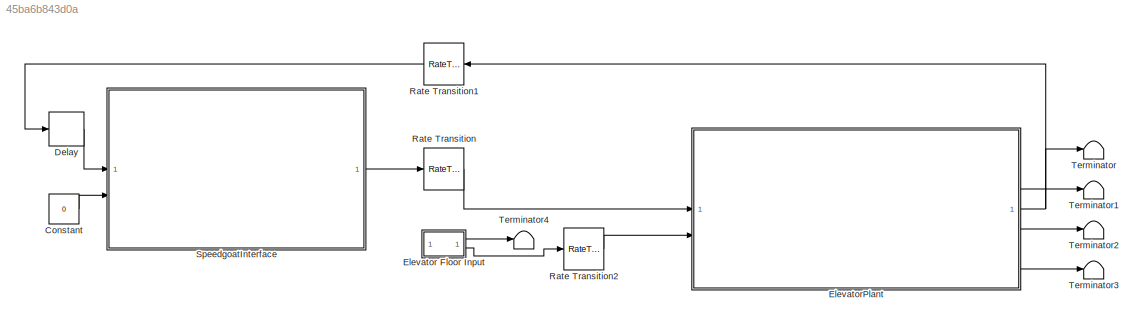
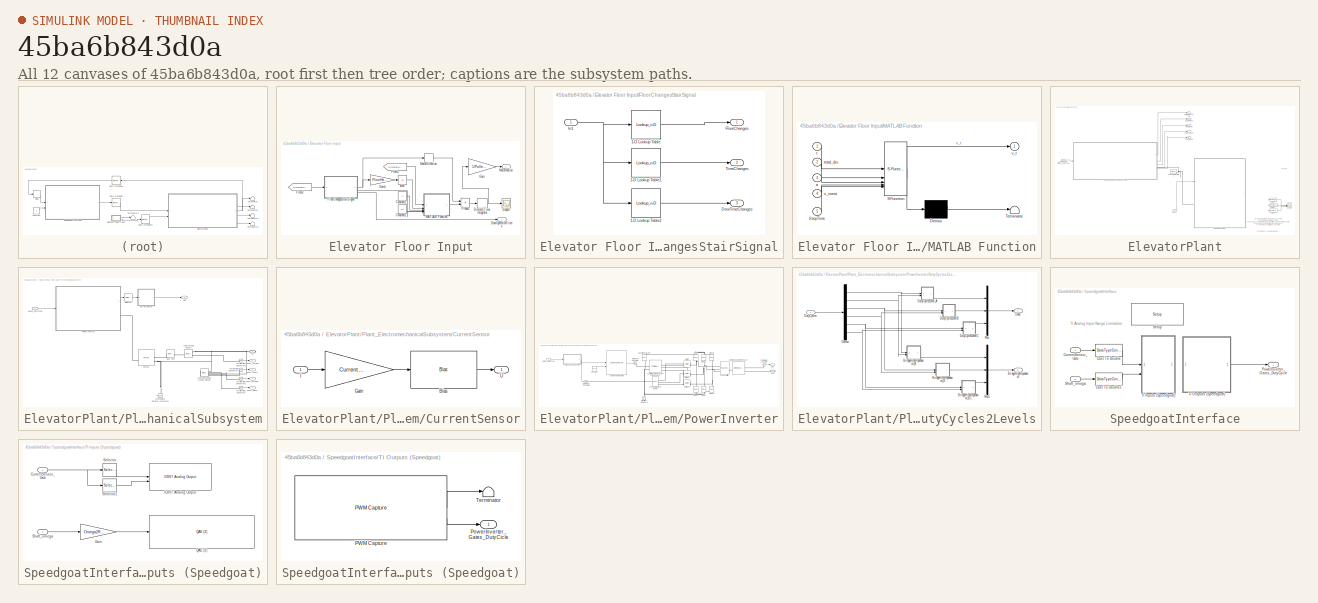
[diagram: thumbnail index - all 12 canvases of the model, root first then tree order]
MODEL slx_45ba6b843d0a
KIND model
CONFIG AbsTol = auto
CONFIG EnableMultiTasking = off
CONFIG FixedStep = auto
CONFIG MaxStep = auto
CONFIG MinStep = auto
CONFIG RelTol = 1e-3
CONFIG SampleTimeConstraint = Unconstrained
CONFIG SolverName = FixedStepAuto
CONFIG StartTime = 0.0
CONFIG StopTime = Inf
BLOCK [Constant] Constant
  SampleTime = -1
  Value = 0
BLOCK [Delay] Delay
  DelayLength = 1
  InputPortMap = u0
BLOCK [SubSystem] Elevator Floor Input
  ShowPortLabels = none
BLOCK [Abs] Elevator Floor Input/Abs
  SaturateOnIntegerOverflow = off
BLOCK [Constant] Elevator Floor Input/Constant1
  SampleTime = -1
BLOCK [Constant] Elevator Floor Input/Constant2
  SampleTime = -1
  Value = 1.5
BLOCK [DiscreteIntegrator] Elevator Floor Input/Discrete-Time Integrator
  ICPrevOutput = DiscIntNeverNeededParam
  ICPrevScaledInput = DiscIntNeverNeededParam
  InitialConditionSetting = Auto
  SampleTime = -1
BLOCK [Outport] Elevator Floor Input/DoorOperationTimes
  Port = 2
  VectorParamsAs1DForOutWhenUnconnected = off
BLOCK [SubSystem] Elevator Floor Input/FloorChangesStairSignal
BLOCK [Lookup_n-D] Elevator Floor Input/FloorChangesStairSignal/1-D Lookup Table
  BreakpointsForDimension1 = FloorTimeStairOut
  BreakpointsForDimension1FirstPoint = 2
  ExtrapMethod = Clip
  InputPortMap = u0
  InternalRulePriority = Speed
  NumberOfTableDimensions = 1
  RndMeth = Nearest
  Table = FloorStairOut
  UseLastTableValue = on
BLOCK [Lookup_n-D] Elevator Floor Input/FloorChangesStairSignal/1-D Lookup Table1
  BreakpointsForDimension1 = StairOutTime2
  BreakpointsForDimension1FirstPoint = 2
  ExtrapMethod = Clip
  InputPortMap = u0
  InternalRulePriority = Speed
  NumberOfTableDimensions = 1
  RndMeth = Nearest
  Table = StairOutTime1
  UseLastTableValue = on
BLOCK [Lookup_n-D] Elevator Floor Input/FloorChangesStairSignal/1-D Lookup Table2
  BreakpointsForDimension1 = DoorStairOutTime2
  BreakpointsForDimension1FirstPoint = 2
  ExtrapMethod = Clip
  InputPortMap = u0
  InternalRulePriority = Speed
  NumberOfTableDimensions = 1
  RndMeth = Nearest
  Table = DoorStairOutTime1
  UseLastTableValue = on
BLOCK [Outport] Elevator Floor Input/FloorChangesStairSignal/DoorTimeChanges
  Port = 3
  VectorParamsAs1DForOutWhenUnconnected = off
BLOCK [Outport] Elevator Floor Input/FloorChangesStairSignal/FloorChanges
  VectorParamsAs1DForOutWhenUnconnected = off
BLOCK [Inport] Elevator Floor Input/FloorChangesStairSignal/In1
BLOCK [Outport] Elevator Floor Input/FloorChangesStairSignal/TimeChanges
  Port = 2
  VectorParamsAs1DForOutWhenUnconnected = off
BLOCK [From] Elevator Floor Input/From1
  GotoTag = SimulationTime
BLOCK [From] Elevator Floor Input/From2
  GotoTag = SimulationTime
BLOCK [Gain] Elevator Floor Input/Gain
  Gain = 1/Pulley.radius
BLOCK [Gain] Elevator Floor Input/Gain1
  Gain = FloorHeight
BLOCK [SubSystem] Elevator Floor Input/MATLAB Function
  ErrorFcn = Stateflow.Translate.translate
  PermitHierarchicalResolution = ExplicitOnly
  SFBlockType = MATLAB Function
  TreatAsAtomicUnit = on
BLOCK [Demux] Elevator Floor Input/MATLAB Function/ Demux 
  Outputs = 1
BLOCK [S-Function] Elevator Floor Input/MATLAB Function/ SFunction 
  EnableBusSupport = on
  FunctionName = sf_sfun
  PortCounts = [5 2]
  SFcnIsStateOwnerBlock = off
  SFunctionDeploymentMode = off
  Tag = Stateflow S-Function 2
BLOCK [Terminator] Elevator Floor Input/MATLAB Function/ Terminator 
BLOCK [Inport] Elevator Floor Input/MATLAB Function/StepTime
  Port = 5
BLOCK [Inport] Elevator Floor Input/MATLAB Function/a
  Port = 3
BLOCK [Inport] Elevator Floor Input/MATLAB Function/t
BLOCK [Inport] Elevator Floor Input/MATLAB Function/total_dis
  Port = 2
BLOCK [Inport] Elevator Floor Input/MATLAB Function/v_const
  Port = 4
BLOCK [Outport] Elevator Floor Input/MATLAB Function/v_t
  VectorParamsAs1DForOutWhenUnconnected = off
BLOCK [Signum] Elevator Floor Input/MotorDirection
BLOCK [Outport] Elevator Floor Input/MotorMotion
  VectorParamsAs1DForOutWhenUnconnected = off
BLOCK [Product] Elevator Floor Input/Product
BLOCK [Scope] Elevator Floor Input/Scope1
  Floating = off
  NumInputPorts = 1
  ScopeSpecificationString = Simulink.scopes.TimeScopeBlockCfg('CurrentConfiguration', extmgr.ConfigurationSet(extmgr.Configuration('Core','General UI',true),extmgr.Configuration('Core','Source UI',true),extmgr.Configuration('Sources','WiredSimulink',true,'DataLoggingVariableName','ScopeData5'),extmgr.Configuration('Visuals','Time Domain',true,'SerializedDisplays',{struct('MinYLimReal','-1.8','MaxYLimReal','16.19996','YLabelR...<+1413ch>
BLOCK [SubSystem] ElevatorPlant
BLOCK [Outport] ElevatorPlant/CurrentSensor_Uab
BLOCK [Inport] ElevatorPlant/Door_t
  Port = 2
BLOCK [SubSystem] ElevatorPlant/ElevatorAssembly
  PortSchema = {"entries":[{"content":{"sides":[{"content":{"connectorIds":["LConn1","In1"]},"type":"ConnectorPlacement.EquallySpacedRectSide","uuid":"d6cdcc45-76f5-4e8f-aa72-f7931a260e9d"},{"content":{"side":"RIGHT"},"type":"ConnectorPlacement.EquallySpacedRectSide","uuid":"7886d4e3-3d61-4781-ae6a-17f03b8e636c"},{"content":{"side":"TOP"},"type":"ConnectorPlacement.EquallySpacedRectSide","uuid":"a03356aa-ba1a-42...<+207ch>
  ReferencedSubsystem = ElevatorAssembly
BLOCK [From] ElevatorPlant/From
  Commented = on
  GotoTag = Elevator_h
  TagVisibility = global
BLOCK [From] ElevatorPlant/From1
  Commented = on
  GotoTag = Elevator_v
  TagVisibility = global
BLOCK [From] ElevatorPlant/From2
  Commented = on
  GotoTag = Elevator_a
  TagVisibility = global
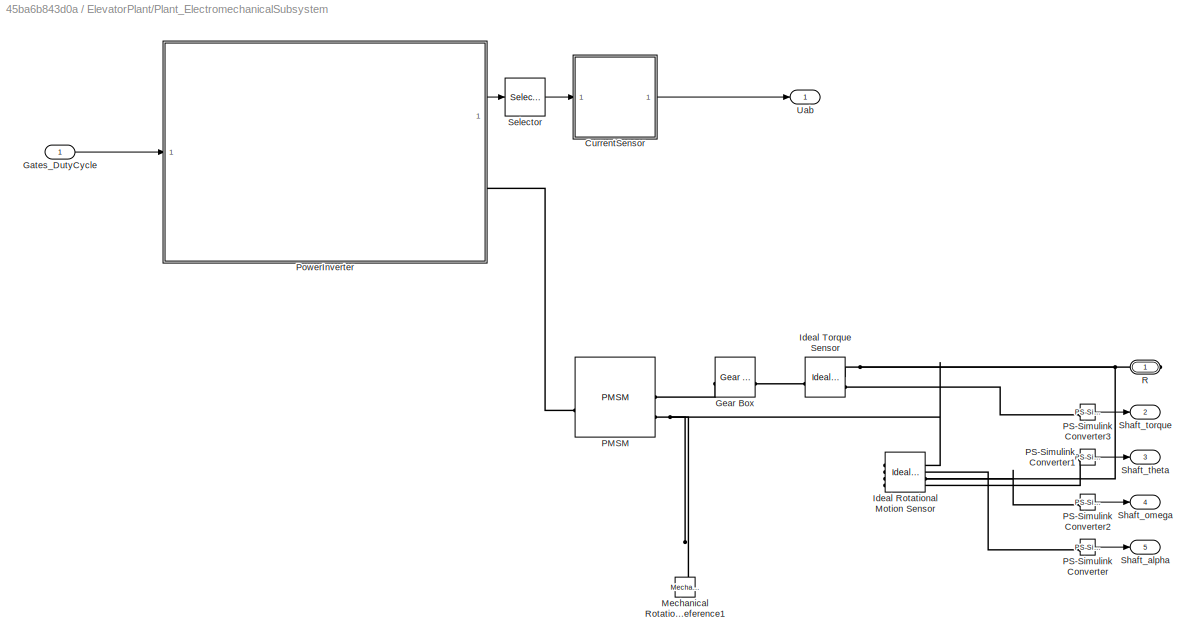
BLOCK [SubSystem] ElevatorPlant/Plant_ElectromechanicalSubsystem
BLOCK [SubSystem] ElevatorPlant/Plant_ElectromechanicalSubsystem/CurrentSensor
BLOCK [Bias] ElevatorPlant/Plant_ElectromechanicalSubsystem/CurrentSensor/Bias
  Bias = CurrentSensor_Bias
  SaturateOnIntegerOverflow = off
BLOCK [Gain] ElevatorPlant/Plant_ElectromechanicalSubsystem/CurrentSensor/Gain
  Gain = CurrentSensor_Gain
BLOCK [Inport] ElevatorPlant/Plant_ElectromechanicalSubsystem/CurrentSensor/I
BLOCK [Outport] ElevatorPlant/Plant_ElectromechanicalSubsystem/CurrentSensor/U
BLOCK [Inport] ElevatorPlant/Plant_ElectromechanicalSubsystem/Gates_DutyCycle
BLOCK [Reference] ElevatorPlant/Plant_ElectromechanicalSubsystem/Gear Box  REF=fl_lib/Mechanical/Mechanisms/Gear Box
  SourceBlock = fl_lib/Mechanical/Mechanisms/Gear Box
  SourceType = Gear Box
BLOCK [Reference] ElevatorPlant/Plant_ElectromechanicalSubsystem/Ideal Rotational Motion Sensor  REF=fl_lib/Mechanical/Mechanical Sensors/Ideal Rotational
Motion Sensor
  SourceBlock = fl_lib/Mechanical/Mechanical Sensors/Ideal Rotational\nMotion Sensor
  SourceType = Ideal Rotational\nMotion Sensor
BLOCK [Reference] ElevatorPlant/Plant_ElectromechanicalSubsystem/Ideal Torque Sensor  REF=fl_lib/Mechanical/Mechanical Sensors/Ideal Torque Sensor
  SourceBlock = fl_lib/Mechanical/Mechanical Sensors/Ideal Torque Sensor
  SourceType = Ideal Torque Sensor
BLOCK [Reference] ElevatorPlant/Plant_ElectromechanicalSubsystem/Mechanical Rotational Reference1  REF=fl_lib/Mechanical/Rotational Elements/Mechanical
Rotational Reference
  NameLocation = right
  SourceBlock = fl_lib/Mechanical/Rotational Elements/Mechanical\nRotational Reference
  SourceType = Mechanical\nRotational Reference
BLOCK [Reference] ElevatorPlant/Plant_ElectromechanicalSubsystem/PMSM  REF=ee_lib/Electromechanical/Permanent Magnet/PMSM
  AttributesFormatString = Siemens:1FT7108-5AC7
  SourceBlock = ee_lib/Electromechanical/Permanent Magnet/PMSM
  SourceType = PMSM
  Tag = {'toolbox/physmod/elec/library/m/ee_lib_parts';'Electromechanical/Permanent_Magnet/PMSM/Siemens/x1FT7108_5AC7.xml'}
BLOCK [Reference] ElevatorPlant/Plant_ElectromechanicalSubsystem/PS-Simulink Converter  REF=nesl_utility/PS-Simulink
Converter
  SourceBlock = nesl_utility/PS-Simulink\nConverter
  SourceType = PS-Simulink\nConverter
BLOCK [Reference] ElevatorPlant/Plant_ElectromechanicalSubsystem/PS-Simulink Converter1  REF=nesl_utility/PS-Simulink
Converter
  SourceBlock = nesl_utility/PS-Simulink\nConverter
  SourceType = PS-Simulink\nConverter
BLOCK [Reference] ElevatorPlant/Plant_ElectromechanicalSubsystem/PS-Simulink Converter2  REF=nesl_utility/PS-Simulink
Converter
  SourceBlock = nesl_utility/PS-Simulink\nConverter
  SourceType = PS-Simulink\nConverter
BLOCK [Reference] ElevatorPlant/Plant_ElectromechanicalSubsystem/PS-Simulink Converter3  REF=nesl_utility/PS-Simulink
Converter
  SourceBlock = nesl_utility/PS-Simulink\nConverter
  SourceType = PS-Simulink\nConverter
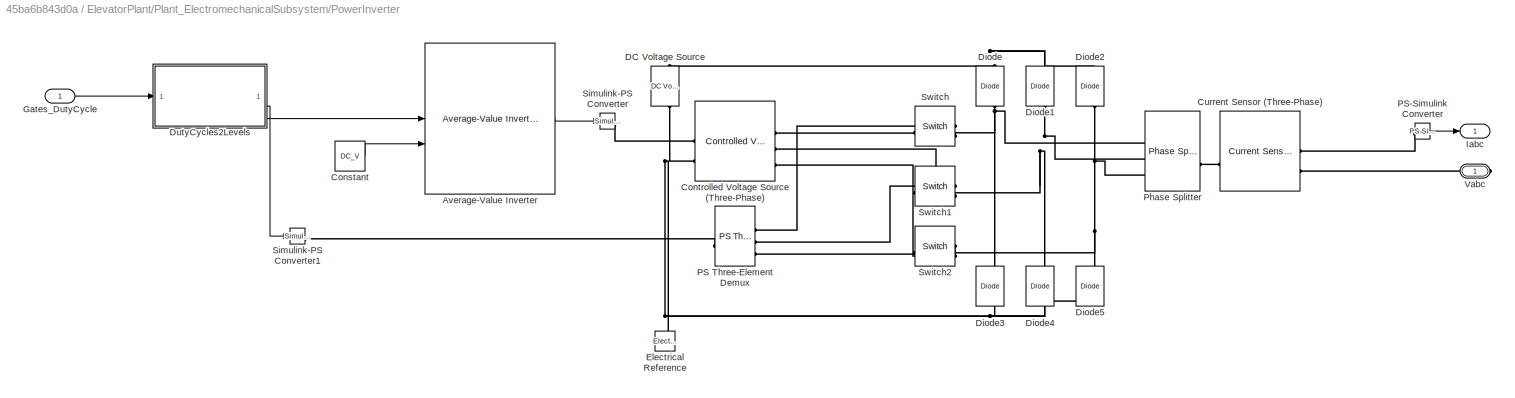
BLOCK [SubSystem] ElevatorPlant/Plant_ElectromechanicalSubsystem/PowerInverter
BLOCK [Reference] ElevatorPlant/Plant_ElectromechanicalSubsystem/PowerInverter/Average-Value Inverter  REF=mcbplantlib/Average-Value Inverter
  LibrarySourceBlock = mcblib/Electrical Systems/Inverters/Average-Value Inverter
  SourceBlock = mcbplantlib/Average-Value Inverter
  SourceType = Average Value Inverter
BLOCK [Constant] ElevatorPlant/Plant_ElectromechanicalSubsystem/PowerInverter/Constant
  Value = DC_V
BLOCK [Reference] ElevatorPlant/Plant_ElectromechanicalSubsystem/PowerInverter/Controlled Voltage Source (Three-Phase)  REF=ee_lib/Sources/Controlled Voltage
Source
(Three-Phase)
  SourceBlock = ee_lib/Sources/Controlled Voltage\nSource\n(Three-Phase)
  SourceType = Controlled Voltage\nSource\n(Three-Phase)
BLOCK [Reference] ElevatorPlant/Plant_ElectromechanicalSubsystem/PowerInverter/Current Sensor (Three-Phase)  REF=ee_lib/Sensors &
Transducers/Current Sensor
(Three-Phase)
  SourceBlock = ee_lib/Sensors &\nTransducers/Current Sensor\n(Three-Phase)
  SourceType = Current Sensor\n(Three-Phase)
BLOCK [Reference] ElevatorPlant/Plant_ElectromechanicalSubsystem/PowerInverter/DC Voltage Source  REF=fl_lib/Electrical/Electrical Sources/DC Voltage Source
  NameLocation = right
  SourceBlock = fl_lib/Electrical/Electrical Sources/DC Voltage Source
  SourceType = DC Voltage Source
BLOCK [Reference] ElevatorPlant/Plant_ElectromechanicalSubsystem/PowerInverter/Diode  REF=ee_lib/Semiconductors &
Converters/Diode
  NameLocation = right
  SourceBlock = ee_lib/Semiconductors &\nConverters/Diode
  SourceType = Diode
BLOCK [Reference] ElevatorPlant/Plant_ElectromechanicalSubsystem/PowerInverter/Diode1  REF=ee_lib/Semiconductors &
Converters/Diode
  NameLocation = right
  SourceBlock = ee_lib/Semiconductors &\nConverters/Diode
  SourceType = Diode
BLOCK [Reference] ElevatorPlant/Plant_ElectromechanicalSubsystem/PowerInverter/Diode2  REF=ee_lib/Semiconductors &
Converters/Diode
  NameLocation = right
  SourceBlock = ee_lib/Semiconductors &\nConverters/Diode
  SourceType = Diode
BLOCK [Reference] ElevatorPlant/Plant_ElectromechanicalSubsystem/PowerInverter/Diode3  REF=ee_lib/Semiconductors &
Converters/Diode
  NameLocation = right
  SourceBlock = ee_lib/Semiconductors &\nConverters/Diode
  SourceType = Diode
BLOCK [Reference] ElevatorPlant/Plant_ElectromechanicalSubsystem/PowerInverter/Diode4  REF=ee_lib/Semiconductors &
Converters/Diode
  NameLocation = right
  SourceBlock = ee_lib/Semiconductors &\nConverters/Diode
  SourceType = Diode
BLOCK [Reference] ElevatorPlant/Plant_ElectromechanicalSubsystem/PowerInverter/Diode5  REF=ee_lib/Semiconductors &
Converters/Diode
  NameLocation = right
  SourceBlock = ee_lib/Semiconductors &\nConverters/Diode
  SourceType = Diode
BLOCK [SubSystem] ElevatorPlant/Plant_ElectromechanicalSubsystem/PowerInverter/DutyCycles2Levels
BLOCK [Outport] ElevatorPlant/Plant_ElectromechanicalSubsystem/PowerInverter/DutyCycles2Levels/BridgeHighImpedance
  NameLocation = top
  Port = 2
BLOCK [SubSystem] ElevatorPlant/Plant_ElectromechanicalSubsystem/PowerInverter/DutyCycles2Levels/BridgeHighImpedance_A
  ReferencedSubsystem = DutyCycle2BridgeImpedance
BLOCK [SubSystem] ElevatorPlant/Plant_ElectromechanicalSubsystem/PowerInverter/DutyCycles2Levels/BridgeHighImpedance_B
  ReferencedSubsystem = DutyCycle2BridgeImpedance
BLOCK [SubSystem] ElevatorPlant/Plant_ElectromechanicalSubsystem/PowerInverter/DutyCycles2Levels/BridgeHighImpedance_B1
  ReferencedSubsystem = DutyCycle2BridgeImpedance
BLOCK [Outport] ElevatorPlant/Plant_ElectromechanicalSubsystem/PowerInverter/DutyCycles2Levels/Dabc
  NameLocation = top
BLOCK [Demux] ElevatorPlant/Plant_ElectromechanicalSubsystem/PowerInverter/DutyCycles2Levels/Demux
  Outputs = 6
BLOCK [SubSystem] ElevatorPlant/Plant_ElectromechanicalSubsystem/PowerInverter/DutyCycles2Levels/DutyCycle2LevelB
  ReferencedSubsystem = DutyCycle2_Level
  TreatAsAtomicUnit = on
BLOCK [SubSystem] ElevatorPlant/Plant_ElectromechanicalSubsystem/PowerInverter/DutyCycles2Levels/DutyCycle2LevelC
  ReferencedSubsystem = DutyCycle2_Level
  TreatAsAtomicUnit = on
BLOCK [SubSystem] ElevatorPlant/Plant_ElectromechanicalSubsystem/PowerInverter/DutyCycles2Levels/DutyCycle2Level_A
  ReferencedSubsystem = DutyCycle2_Level
  TreatAsAtomicUnit = on
BLOCK [Inport] ElevatorPlant/Plant_ElectromechanicalSubsystem/PowerInverter/DutyCycles2Levels/DutyCycles
BLOCK [Mux] ElevatorPlant/Plant_ElectromechanicalSubsystem/PowerInverter/DutyCycles2Levels/Mux
  DisplayOption = bar
  Inputs = 3
BLOCK [Mux] ElevatorPlant/Plant_ElectromechanicalSubsystem/PowerInverter/DutyCycles2Levels/Mux1
  DisplayOption = bar
  Inputs = 3
BLOCK [Reference] ElevatorPlant/Plant_ElectromechanicalSubsystem/PowerInverter/Electrical Reference  REF=fl_lib/Electrical/Electrical Elements/Electrical Reference
  NameLocation = right
  SourceBlock = fl_lib/Electrical/Electrical Elements/Electrical Reference
  SourceType = Electrical Reference
BLOCK [Inport] ElevatorPlant/Plant_ElectromechanicalSubsystem/PowerInverter/Gates_DutyCycle
BLOCK [Outport] ElevatorPlant/Plant_ElectromechanicalSubsystem/PowerInverter/Iabc
BLOCK [Reference] ElevatorPlant/Plant_ElectromechanicalSubsystem/PowerInverter/PS Three-Element Demux  REF=fl_lib/Physical Signals/Nonlinear Operators/PS Three-Element
Demux
  LibrarySourceBlock = ee_lib/Connectors &\nReferences/PS Three-Element Demux
  SourceBlock = fl_lib/Physical Signals/Nonlinear Operators/PS Three-Element\nDemux
  SourceType = PS Three-Element\nDemux
BLOCK [Reference] ElevatorPlant/Plant_ElectromechanicalSubsystem/PowerInverter/PS-Simulink Converter  REF=nesl_utility/PS-Simulink
Converter
  SourceBlock = nesl_utility/PS-Simulink\nConverter
  SourceType = PS-Simulink\nConverter
BLOCK [Reference] ElevatorPlant/Plant_ElectromechanicalSubsystem/PowerInverter/Phase Splitter  REF=ee_lib/Connectors &
References/Phase Splitter
  SourceBlock = ee_lib/Connectors &\nReferences/Phase Splitter
  SourceType = Phase Splitter
BLOCK [Reference] ElevatorPlant/Plant_ElectromechanicalSubsystem/PowerInverter/Simulink-PS Converter  REF=nesl_utility/Simulink-PS
Converter
  SourceBlock = nesl_utility/Simulink-PS\nConverter
  SourceType = Simulink-PS\nConverter
BLOCK [Reference] ElevatorPlant/Plant_ElectromechanicalSubsystem/PowerInverter/Simulink-PS Converter1  REF=nesl_utility/Simulink-PS
Converter
  SourceBlock = nesl_utility/Simulink-PS\nConverter
  SourceType = Simulink-PS\nConverter
BLOCK [Reference] ElevatorPlant/Plant_ElectromechanicalSubsystem/PowerInverter/Switch  REF=fl_lib/Electrical/Electrical Elements/Switch
  NameLocation = top
  SourceBlock = fl_lib/Electrical/Electrical Elements/Switch
  SourceType = Switch
BLOCK [Reference] ElevatorPlant/Plant_ElectromechanicalSubsystem/PowerInverter/Switch1  REF=fl_lib/Electrical/Electrical Elements/Switch
  NameLocation = top
  SourceBlock = fl_lib/Electrical/Electrical Elements/Switch
  SourceType = Switch
BLOCK [Reference] ElevatorPlant/Plant_ElectromechanicalSubsystem/PowerInverter/Switch2  REF=fl_lib/Electrical/Electrical Elements/Switch
  NameLocation = top
  SourceBlock = fl_lib/Electrical/Electrical Elements/Switch
  SourceType = Switch
BLOCK [PMIOPort] ElevatorPlant/Plant_ElectromechanicalSubsystem/PowerInverter/Vabc
  Side = Right
BLOCK [PMIOPort] ElevatorPlant/Plant_ElectromechanicalSubsystem/R
  Side = Right
BLOCK [Selector] ElevatorPlant/Plant_ElectromechanicalSubsystem/Selector
  IndexOptions = Index vector (dialog)
  Indices = [1 2]
  InputPortWidth = 3
  OutputSizes = 1
BLOCK [Outport] ElevatorPlant/Plant_ElectromechanicalSubsystem/Shaft_alpha
  Port = 5
BLOCK [Outport] ElevatorPlant/Plant_ElectromechanicalSubsystem/Shaft_omega
  Port = 4
BLOCK [Outport] ElevatorPlant/Plant_ElectromechanicalSubsystem/Shaft_theta
  Port = 3
BLOCK [Outport] ElevatorPlant/Plant_ElectromechanicalSubsystem/Shaft_torque
  Port = 2
BLOCK [Outport] ElevatorPlant/Plant_ElectromechanicalSubsystem/Uab
BLOCK [Inport] ElevatorPlant/PowerInverter_Gates_DutyCycle
BLOCK [Scope] ElevatorPlant/Scope
  Commented = on
  Floating = off
  NumInputPorts = 3
  ScopeSpecificationString = Simulink.scopes.TimeScopeBlockCfg('CurrentConfiguration', extmgr.ConfigurationSet(extmgr.Configuration('Core','General UI',true),extmgr.Configuration('Core','Source UI',true),extmgr.Configuration('Sources','WiredSimulink',true,'DataLoggingVariableName','ScopeData1','SampleTime','0.005'),extmgr.Configuration('Visuals','Time Domain',true,'SerializedDisplays',{struct('MinYLimReal','-3.28747','MaxYLim...<+3083ch>
BLOCK [Outport] ElevatorPlant/Shaft_alpha
  Port = 5
BLOCK [Outport] ElevatorPlant/Shaft_omega
  Port = 4
BLOCK [Outport] ElevatorPlant/Shaft_theta
  Port = 3
BLOCK [Outport] ElevatorPlant/Shaft_torque
  Port = 2
BLOCK [Reference] ElevatorPlant/Solver Configuration  REF=nesl_utility/Solver
Configuration
  SourceBlock = nesl_utility/Solver\nConfiguration
  SourceType = Solver\nConfiguration
BLOCK [RateTransition] Rate Transition
BLOCK [RateTransition] Rate Transition1
  NameLocation = top
BLOCK [RateTransition] Rate Transition2
BLOCK [SubSystem] SpeedgoatInterface
BLOCK [DataTypeConversion] SpeedgoatInterface/Cast To Double
  OutDataTypeStr = double
  OutMax = ADC_VMax
  OutMin = ADC_VMin
  RndMeth = Floor
  SaturateOnIntegerOverflow = off
BLOCK [DataTypeConversion] SpeedgoatInterface/Cast To Double1
  OutDataTypeStr = double
  RndMeth = Floor
  SaturateOnIntegerOverflow = off
BLOCK [Inport] SpeedgoatInterface/CurrentSensor_Uab
  OutDataTypeStr = double
  PortDimensions = 2
  SamplingMode = Sample based
  SignalType = real
BLOCK [Outport] SpeedgoatInterface/PowerInverter_Gates_DutyCycle
  OutDataTypeStr = double
  PortDimensions = 6
  SamplingMode = Sample based
  SignalType = real
BLOCK [Reference] SpeedgoatInterface/Setup  REF=speedgoatlib_fpga/Setup/Setup
  SourceBlock = speedgoatlib_fpga/Setup/Setup
  SourceProductName = Simulink Real-Time: Speedgoat I/O Blockset
  SourceType = setup_fpga_3
BLOCK [Inport] SpeedgoatInterface/Shaft_omega
  OutDataTypeStr = double
  Port = 2
  PortDimensions = 1
  SamplingMode = Sample based
  SignalType = real
BLOCK [SubSystem] SpeedgoatInterface/TI Inputs (Speedgoat)
BLOCK [Inport] SpeedgoatInterface/TI Inputs (Speedgoat)/CurrentSensor_Uab
BLOCK [Gain] SpeedgoatInterface/TI Inputs (Speedgoat)/Gain
  Gain = Omega2RPM
BLOCK [Reference] SpeedgoatInterface/TI Inputs (Speedgoat)/IO397 Analog Output  REF=speedgoatlib_fpga_analog_io/IO397 Analog Output
  SourceBlock = speedgoatlib_fpga_analog_io/IO397 Analog Output
  SourceProductName = Simulink Real-Time: Speedgoat I/O Blockset
  SourceType = da_IO397
BLOCK [Reference] SpeedgoatInterface/TI Inputs (Speedgoat)/QAE (3)  REF=speedgoatlib_fpga_quadrature/QAE (3)
  SourceBlock = speedgoatlib_fpga_quadrature/QAE (3)
  SourceProductName = Simulink Real-Time: Speedgoat I/O Blockset
  SourceType = qae_fpga_3
BLOCK [Selector] SpeedgoatInterface/TI Inputs (Speedgoat)/Selector
  IndexOptions = Index vector (dialog)
  Indices = 1
  InputPortWidth = 2
  OutputSizes = 1
BLOCK [Selector] SpeedgoatInterface/TI Inputs (Speedgoat)/Selector1
  IndexOptions = Index vector (dialog)
  Indices = 2
  InputPortWidth = 2
  OutputSizes = 1
BLOCK [Inport] SpeedgoatInterface/TI Inputs (Speedgoat)/Shaft_omega
  Port = 2
BLOCK [SubSystem] SpeedgoatInterface/TI Outputs (Speedgoat)
BLOCK [Reference] SpeedgoatInterface/TI Outputs (Speedgoat)/PWM Capture  REF=speedgoatlib_fpga_pwm/PWM Capture
  SourceBlock = speedgoatlib_fpga_pwm/PWM Capture
  SourceProductName = Simulink Real-Time: Speedgoat I/O Blockset
  SourceType = cap_fpga_1
BLOCK [Outport] SpeedgoatInterface/TI Outputs (Speedgoat)/PowerInverter_Gates_DutyCicle
BLOCK [Terminator] SpeedgoatInterface/TI Outputs (Speedgoat)/Terminator
BLOCK [Terminator] Terminator
BLOCK [Terminator] Terminator1
BLOCK [Terminator] Terminator2
BLOCK [Terminator] Terminator3
BLOCK [Terminator] Terminator4
ANNOTATION ElevatorPlant: 1. Explore simulation results using sscexplore 2. Learn more about this example 3. Analyze ( see code ) the effects of cable stiffness on elevator dynamics 3. Learn more about the Belt-Cable Domain blocks 4. Learn more about multibody modeling
ANNOTATION ElevatorPlant: Elevator
ANNOTATION ElevatorPlant: <copyright redacted>
ANNOTATION SpeedgoatInterface: TI Analog Input Range Limitation
LINE Constant:1 -> SpeedgoatInterface:2
LINE Delay:1 -> SpeedgoatInterface:1
LINE Elevator Floor Input/Abs:1 -> Elevator Floor Input/MATLAB Function:2
LINE Elevator Floor Input/Constant1:1 -> Elevator Floor Input/MATLAB Function:3
LINE Elevator Floor Input/Constant2:1 -> Elevator Floor Input/MATLAB Function:4
NET Elevator Floor Input/Discrete-Time Integrator:1 -> Elevator Floor Input/Gain:1, Elevator Floor Input/Scope1:1
LINE Elevator Floor Input/FloorChangesStairSignal/1-D Lookup Table1:1 -> Elevator Floor Input/FloorChangesStairSignal/TimeChanges:1
LINE Elevator Floor Input/FloorChangesStairSignal/1-D Lookup Table2:1 -> Elevator Floor Input/FloorChangesStairSignal/DoorTimeChanges:1
LINE Elevator Floor Input/FloorChangesStairSignal/1-D Lookup Table:1 -> Elevator Floor Input/FloorChangesStairSignal/FloorChanges:1
NET Elevator Floor Input/FloorChangesStairSignal/In1:1 -> Elevator Floor Input/FloorChangesStairSignal/1-D Lookup Table1:1, Elevator Floor Input/FloorChangesStairSignal/1-D Lookup Table2:1, Elevator Floor Input/FloorChangesStairSignal/1-D Lookup Table:1
NET Elevator Floor Input/FloorChangesStairSignal:1 -> Elevator Floor Input/Gain1:1, Elevator Floor Input/MotorDirection:1
LINE Elevator Floor Input/FloorChangesStairSignal:2 -> Elevator Floor Input/MATLAB Function:5
LINE Elevator Floor Input/FloorChangesStairSignal:3 -> Elevator Floor Input/DoorOperationTimes:1
LINE Elevator Floor Input/From1:1 -> Elevator Floor Input/MATLAB Function:1
LINE Elevator Floor Input/From2:1 -> Elevator Floor Input/FloorChangesStairSignal:1
LINE Elevator Floor Input/Gain1:1 -> Elevator Floor Input/Abs:1
LINE Elevator Floor Input/Gain:1 -> Elevator Floor Input/MotorMotion:1
LINE Elevator Floor Input/MATLAB Function:1 -> Elevator Floor Input/Product:2
LINE Elevator Floor Input/MotorDirection:1 -> Elevator Floor Input/Product:1
LINE Elevator Floor Input/Product:1 -> Elevator Floor Input/Discrete-Time Integrator:1
LINE Elevator Floor Input:1 -> Terminator4:1
LINE Elevator Floor Input:2 -> Rate Transition2:1
LINE ElevatorPlant/Door_t:1 -> ElevatorPlant/ElevatorAssembly:1
LINE ElevatorPlant/From1:1 -> ElevatorPlant/Scope:2
LINE ElevatorPlant/From2:1 -> ElevatorPlant/Scope:3
LINE ElevatorPlant/From:1 -> ElevatorPlant/Scope:1
LINE ElevatorPlant/Plant_ElectromechanicalSubsystem/CurrentSensor/Bias:1 -> ElevatorPlant/Plant_ElectromechanicalSubsystem/CurrentSensor/U:1
LINE ElevatorPlant/Plant_ElectromechanicalSubsystem/CurrentSensor/Gain:1 -> ElevatorPlant/Plant_ElectromechanicalSubsystem/CurrentSensor/Bias:1
LINE ElevatorPlant/Plant_ElectromechanicalSubsystem/CurrentSensor/I:1 -> ElevatorPlant/Plant_ElectromechanicalSubsystem/CurrentSensor/Gain:1
LINE ElevatorPlant/Plant_ElectromechanicalSubsystem/CurrentSensor:1 -> ElevatorPlant/Plant_ElectromechanicalSubsystem/Uab:1
LINE ElevatorPlant/Plant_ElectromechanicalSubsystem/Gates_DutyCycle:1 -> ElevatorPlant/Plant_ElectromechanicalSubsystem/PowerInverter:1
LINE ElevatorPlant/Plant_ElectromechanicalSubsystem/PS-Simulink Converter1:1 -> ElevatorPlant/Plant_ElectromechanicalSubsystem/Shaft_theta:1
LINE ElevatorPlant/Plant_ElectromechanicalSubsystem/PS-Simulink Converter2:1 -> ElevatorPlant/Plant_ElectromechanicalSubsystem/Shaft_omega:1
LINE ElevatorPlant/Plant_ElectromechanicalSubsystem/PS-Simulink Converter3:1 -> ElevatorPlant/Plant_ElectromechanicalSubsystem/Shaft_torque:1
LINE ElevatorPlant/Plant_ElectromechanicalSubsystem/PS-Simulink Converter:1 -> ElevatorPlant/Plant_ElectromechanicalSubsystem/Shaft_alpha:1
LINE ElevatorPlant/Plant_ElectromechanicalSubsystem/PowerInverter/Average-Value Inverter:1 -> ElevatorPlant/Plant_ElectromechanicalSubsystem/PowerInverter/Simulink-PS Converter:1
LINE ElevatorPlant/Plant_ElectromechanicalSubsystem/PowerInverter/Constant:1 -> ElevatorPlant/Plant_ElectromechanicalSubsystem/PowerInverter/Average-Value Inverter:2
LINE ElevatorPlant/Plant_ElectromechanicalSubsystem/PowerInverter/DutyCycles2Levels/BridgeHighImpedance_A:1 -> ElevatorPlant/Plant_ElectromechanicalSubsystem/PowerInverter/DutyCycles2Levels/Mux1:1
LINE ElevatorPlant/Plant_ElectromechanicalSubsystem/PowerInverter/DutyCycles2Levels/BridgeHighImpedance_B1:1 -> ElevatorPlant/Plant_ElectromechanicalSubsystem/PowerInverter/DutyCycles2Levels/Mux1:3
LINE ElevatorPlant/Plant_ElectromechanicalSubsystem/PowerInverter/DutyCycles2Levels/BridgeHighImpedance_B:1 -> ElevatorPlant/Plant_ElectromechanicalSubsystem/PowerInverter/DutyCycles2Levels/Mux1:2
NET ElevatorPlant/Plant_ElectromechanicalSubsystem/PowerInverter/DutyCycles2Levels/Demux:1 -> ElevatorPlant/Plant_ElectromechanicalSubsystem/PowerInverter/DutyCycles2Levels/BridgeHighImpedance_A:1, ElevatorPlant/Plant_ElectromechanicalSubsystem/PowerInverter/DutyCycles2Levels/DutyCycle2Level_A:1
NET ElevatorPlant/Plant_ElectromechanicalSubsystem/PowerInverter/DutyCycles2Levels/Demux:2 -> ElevatorPlant/Plant_ElectromechanicalSubsystem/PowerInverter/DutyCycles2Levels/BridgeHighImpedance_A:2, ElevatorPlant/Plant_ElectromechanicalSubsystem/PowerInverter/DutyCycles2Levels/DutyCycle2Level_A:2
NET ElevatorPlant/Plant_ElectromechanicalSubsystem/PowerInverter/DutyCycles2Levels/Demux:3 -> ElevatorPlant/Plant_ElectromechanicalSubsystem/PowerInverter/DutyCycles2Levels/BridgeHighImpedance_B:1, ElevatorPlant/Plant_ElectromechanicalSubsystem/PowerInverter/DutyCycles2Levels/DutyCycle2LevelB:1
NET ElevatorPlant/Plant_ElectromechanicalSubsystem/PowerInverter/DutyCycles2Levels/Demux:4 -> ElevatorPlant/Plant_ElectromechanicalSubsystem/PowerInverter/DutyCycles2Levels/BridgeHighImpedance_B:2, ElevatorPlant/Plant_ElectromechanicalSubsystem/PowerInverter/DutyCycles2Levels/DutyCycle2LevelB:2
NET ElevatorPlant/Plant_ElectromechanicalSubsystem/PowerInverter/DutyCycles2Levels/Demux:5 -> ElevatorPlant/Plant_ElectromechanicalSubsystem/PowerInverter/DutyCycles2Levels/BridgeHighImpedance_B1:1, ElevatorPlant/Plant_ElectromechanicalSubsystem/PowerInverter/DutyCycles2Levels/DutyCycle2LevelC:1
NET ElevatorPlant/Plant_ElectromechanicalSubsystem/PowerInverter/DutyCycles2Levels/Demux:6 -> ElevatorPlant/Plant_ElectromechanicalSubsystem/PowerInverter/DutyCycles2Levels/BridgeHighImpedance_B1:2, ElevatorPlant/Plant_ElectromechanicalSubsystem/PowerInverter/DutyCycles2Levels/DutyCycle2LevelC:2
LINE ElevatorPlant/Plant_ElectromechanicalSubsystem/PowerInverter/DutyCycles2Levels/DutyCycle2LevelB:1 -> ElevatorPlant/Plant_ElectromechanicalSubsystem/PowerInverter/DutyCycles2Levels/Mux:2
LINE ElevatorPlant/Plant_ElectromechanicalSubsystem/PowerInverter/DutyCycles2Levels/DutyCycle2LevelC:1 -> ElevatorPlant/Plant_ElectromechanicalSubsystem/PowerInverter/DutyCycles2Levels/Mux:3
LINE ElevatorPlant/Plant_ElectromechanicalSubsystem/PowerInverter/DutyCycles2Levels/DutyCycle2Level_A:1 -> ElevatorPlant/Plant_ElectromechanicalSubsystem/PowerInverter/DutyCycles2Levels/Mux:1
LINE ElevatorPlant/Plant_ElectromechanicalSubsystem/PowerInverter/DutyCycles2Levels/DutyCycles:1 -> ElevatorPlant/Plant_ElectromechanicalSubsystem/PowerInverter/DutyCycles2Levels/Demux:1
LINE ElevatorPlant/Plant_ElectromechanicalSubsystem/PowerInverter/DutyCycles2Levels/Mux1:1 -> ElevatorPlant/Plant_ElectromechanicalSubsystem/PowerInverter/DutyCycles2Levels/BridgeHighImpedance:1
LINE ElevatorPlant/Plant_ElectromechanicalSubsystem/PowerInverter/DutyCycles2Levels/Mux:1 -> ElevatorPlant/Plant_ElectromechanicalSubsystem/PowerInverter/DutyCycles2Levels/Dabc:1
LINE ElevatorPlant/Plant_ElectromechanicalSubsystem/PowerInverter/DutyCycles2Levels:1 -> ElevatorPlant/Plant_ElectromechanicalSubsystem/PowerInverter/Average-Value Inverter:1
LINE ElevatorPlant/Plant_ElectromechanicalSubsystem/PowerInverter/DutyCycles2Levels:2 -> ElevatorPlant/Plant_ElectromechanicalSubsystem/PowerInverter/Simulink-PS Converter1:1
LINE ElevatorPlant/Plant_ElectromechanicalSubsystem/PowerInverter/Gates_DutyCycle:1 -> ElevatorPlant/Plant_ElectromechanicalSubsystem/PowerInverter/DutyCycles2Levels:1
LINE ElevatorPlant/Plant_ElectromechanicalSubsystem/PowerInverter/PS-Simulink Converter:1 -> ElevatorPlant/Plant_ElectromechanicalSubsystem/PowerInverter/Iabc:1
LINE ElevatorPlant/Plant_ElectromechanicalSubsystem/PowerInverter:1 -> ElevatorPlant/Plant_ElectromechanicalSubsystem/Selector:1
LINE ElevatorPlant/Plant_ElectromechanicalSubsystem/Selector:1 -> ElevatorPlant/Plant_ElectromechanicalSubsystem/CurrentSensor:1
LINE ElevatorPlant/Plant_ElectromechanicalSubsystem:1 -> ElevatorPlant/CurrentSensor_Uab:1
LINE ElevatorPlant/Plant_ElectromechanicalSubsystem:2 -> ElevatorPlant/Shaft_torque:1
LINE ElevatorPlant/Plant_ElectromechanicalSubsystem:3 -> ElevatorPlant/Shaft_theta:1
LINE ElevatorPlant/Plant_ElectromechanicalSubsystem:4 -> ElevatorPlant/Shaft_omega:1
LINE ElevatorPlant/Plant_ElectromechanicalSubsystem:5 -> ElevatorPlant/Shaft_alpha:1
LINE ElevatorPlant/PowerInverter_Gates_DutyCycle:1 -> ElevatorPlant/Plant_ElectromechanicalSubsystem:1
NET ElevatorPlant:1 -> Rate Transition1:1, Terminator:1
LINE ElevatorPlant:3 -> Terminator1:1
LINE ElevatorPlant:4 -> Terminator2:1
LINE ElevatorPlant:5 -> Terminator3:1
LINE Rate Transition1:1 -> Delay:1
LINE Rate Transition2:1 -> ElevatorPlant:2
LINE Rate Transition:1 -> ElevatorPlant:1
LINE SpeedgoatInterface/Cast To Double1:1 -> SpeedgoatInterface/TI Inputs (Speedgoat):2
LINE SpeedgoatInterface/Cast To Double:1 -> SpeedgoatInterface/TI Inputs (Speedgoat):1
LINE SpeedgoatInterface/CurrentSensor_Uab:1 -> SpeedgoatInterface/Cast To Double:1
LINE SpeedgoatInterface/Shaft_omega:1 -> SpeedgoatInterface/Cast To Double1:1
NET SpeedgoatInterface/TI Inputs (Speedgoat)/CurrentSensor_Uab:1 -> SpeedgoatInterface/TI Inputs (Speedgoat)/Selector1:1, SpeedgoatInterface/TI Inputs (Speedgoat)/Selector:1
LINE SpeedgoatInterface/TI Inputs (Speedgoat)/Gain:1 -> SpeedgoatInterface/TI Inputs (Speedgoat)/QAE (3):1
LINE SpeedgoatInterface/TI Inputs (Speedgoat)/Selector1:1 -> SpeedgoatInterface/TI Inputs (Speedgoat)/IO397 Analog Output:2
LINE SpeedgoatInterface/TI Inputs (Speedgoat)/Selector:1 -> SpeedgoatInterface/TI Inputs (Speedgoat)/IO397 Analog Output:1
LINE SpeedgoatInterface/TI Inputs (Speedgoat)/Shaft_omega:1 -> SpeedgoatInterface/TI Inputs (Speedgoat)/Gain:1
LINE SpeedgoatInterface/TI Outputs (Speedgoat)/PWM Capture:1 -> SpeedgoatInterface/TI Outputs (Speedgoat)/Terminator:1
LINE SpeedgoatInterface/TI Outputs (Speedgoat)/PWM Capture:2 -> SpeedgoatInterface/TI Outputs (Speedgoat)/PowerInverter_Gates_DutyCicle:1
LINE SpeedgoatInterface/TI Outputs (Speedgoat):1 -> SpeedgoatInterface/PowerInverter_Gates_DutyCycle:1
LINE SpeedgoatInterface:1 -> Rate Transition:1
PNET net1: ElevatorPlant/ElevatorAssembly:LConn1 -- ElevatorPlant/Plant_ElectromechanicalSubsystem:RConn1 -- ElevatorPlant/Solver Configuration:RConn1
PLINE ElevatorPlant/Plant_ElectromechanicalSubsystem/Gear Box:LConn1 -- ElevatorPlant/Plant_ElectromechanicalSubsystem/PMSM:RConn1
PLINE ElevatorPlant/Plant_ElectromechanicalSubsystem/Gear Box:RConn1 -- ElevatorPlant/Plant_ElectromechanicalSubsystem/Ideal Torque Sensor:LConn1
PNET net2: ElevatorPlant/Plant_ElectromechanicalSubsystem/Ideal Rotational Motion Sensor:LConn1 -- ElevatorPlant/Plant_ElectromechanicalSubsystem/Ideal Torque Sensor:RConn1 -- ElevatorPlant/Plant_ElectromechanicalSubsystem/R:RConn1
PNET net3: ElevatorPlant/Plant_ElectromechanicalSubsystem/Ideal Rotational Motion Sensor:RConn1 -- ElevatorPlant/Plant_ElectromechanicalSubsystem/Mechanical Rotational Reference1:LConn1 -- ElevatorPlant/Plant_ElectromechanicalSubsystem/PMSM:RConn2
PLINE ElevatorPlant/Plant_ElectromechanicalSubsystem/Ideal Rotational Motion Sensor:RConn2 -- ElevatorPlant/Plant_ElectromechanicalSubsystem/PS-Simulink Converter:LConn1
PLINE ElevatorPlant/Plant_ElectromechanicalSubsystem/Ideal Rotational Motion Sensor:RConn3 -- ElevatorPlant/Plant_ElectromechanicalSubsystem/PS-Simulink Converter2:LConn1
PLINE ElevatorPlant/Plant_ElectromechanicalSubsystem/Ideal Rotational Motion Sensor:RConn4 -- ElevatorPlant/Plant_ElectromechanicalSubsystem/PS-Simulink Converter1:LConn1
PLINE ElevatorPlant/Plant_ElectromechanicalSubsystem/Ideal Torque Sensor:RConn2 -- ElevatorPlant/Plant_ElectromechanicalSubsystem/PS-Simulink Converter3:LConn1
PLINE ElevatorPlant/Plant_ElectromechanicalSubsystem/PMSM:LConn1 -- ElevatorPlant/Plant_ElectromechanicalSubsystem/PowerInverter:RConn1
PLINE ElevatorPlant/Plant_ElectromechanicalSubsystem/PowerInverter/Controlled Voltage Source (Three-Phase):LConn1 -- ElevatorPlant/Plant_ElectromechanicalSubsystem/PowerInverter/Simulink-PS Converter:RConn1
PNET net4: ElevatorPlant/Plant_ElectromechanicalSubsystem/PowerInverter/Controlled Voltage Source (Three-Phase):LConn2 -- ElevatorPlant/Plant_ElectromechanicalSubsystem/PowerInverter/DC Voltage Source:RConn1 -- ElevatorPlant/Plant_ElectromechanicalSubsystem/PowerInverter/Diode3:LConn1 -- ElevatorPlant/Plant_ElectromechanicalSubsystem/PowerInverter/Diode4:LConn1 -- ElevatorPlant/Plant_ElectromechanicalSubsystem/PowerInverter/Diode5:LConn1 -- ElevatorPlant/Plant_ElectromechanicalSubsystem/PowerInverter/Electrical Reference:LConn1
PLINE ElevatorPlant/Plant_ElectromechanicalSubsystem/PowerInverter/Controlled Voltage Source (Three-Phase):RConn1 -- ElevatorPlant/Plant_ElectromechanicalSubsystem/PowerInverter/Switch:RConn2
PLINE ElevatorPlant/Plant_ElectromechanicalSubsystem/PowerInverter/Controlled Voltage Source (Three-Phase):RConn2 -- ElevatorPlant/Plant_ElectromechanicalSubsystem/PowerInverter/Switch1:RConn2
PLINE ElevatorPlant/Plant_ElectromechanicalSubsystem/PowerInverter/Controlled Voltage Source (Three-Phase):RConn3 -- ElevatorPlant/Plant_ElectromechanicalSubsystem/PowerInverter/Switch2:RConn2
PLINE ElevatorPlant/Plant_ElectromechanicalSubsystem/PowerInverter/Current Sensor (Three-Phase):LConn1 -- ElevatorPlant/Plant_ElectromechanicalSubsystem/PowerInverter/Phase Splitter:LConn1
PLINE ElevatorPlant/Plant_ElectromechanicalSubsystem/PowerInverter/Current Sensor (Three-Phase):RConn1 -- ElevatorPlant/Plant_ElectromechanicalSubsystem/PowerInverter/PS-Simulink Converter:LConn1
PLINE ElevatorPlant/Plant_ElectromechanicalSubsystem/PowerInverter/Current Sensor (Three-Phase):RConn2 -- ElevatorPlant/Plant_ElectromechanicalSubsystem/PowerInverter/Vabc:RConn1
PNET net5: ElevatorPlant/Plant_ElectromechanicalSubsystem/PowerInverter/DC Voltage Source:LConn1 -- ElevatorPlant/Plant_ElectromechanicalSubsystem/PowerInverter/Diode1:RConn1 -- ElevatorPlant/Plant_ElectromechanicalSubsystem/PowerInverter/Diode2:RConn1 -- ElevatorPlant/Plant_ElectromechanicalSubsystem/PowerInverter/Diode:RConn1
PNET net6: ElevatorPlant/Plant_ElectromechanicalSubsystem/PowerInverter/Diode1:LConn1 -- ElevatorPlant/Plant_ElectromechanicalSubsystem/PowerInverter/Diode4:RConn1 -- ElevatorPlant/Plant_ElectromechanicalSubsystem/PowerInverter/Phase Splitter:RConn2 -- ElevatorPlant/Plant_ElectromechanicalSubsystem/PowerInverter/Switch1:LConn1
PNET net7: ElevatorPlant/Plant_ElectromechanicalSubsystem/PowerInverter/Diode2:LConn1 -- ElevatorPlant/Plant_ElectromechanicalSubsystem/PowerInverter/Diode5:RConn1 -- ElevatorPlant/Plant_ElectromechanicalSubsystem/PowerInverter/Phase Splitter:RConn3 -- ElevatorPlant/Plant_ElectromechanicalSubsystem/PowerInverter/Switch2:LConn1
PNET net8: ElevatorPlant/Plant_ElectromechanicalSubsystem/PowerInverter/Diode3:RConn1 -- ElevatorPlant/Plant_ElectromechanicalSubsystem/PowerInverter/Diode:LConn1 -- ElevatorPlant/Plant_ElectromechanicalSubsystem/PowerInverter/Phase Splitter:RConn1 -- ElevatorPlant/Plant_ElectromechanicalSubsystem/PowerInverter/Switch:LConn1
PLINE ElevatorPlant/Plant_ElectromechanicalSubsystem/PowerInverter/PS Three-Element Demux:LConn1 -- ElevatorPlant/Plant_ElectromechanicalSubsystem/PowerInverter/Simulink-PS Converter1:RConn1
PLINE ElevatorPlant/Plant_ElectromechanicalSubsystem/PowerInverter/PS Three-Element Demux:RConn1 -- ElevatorPlant/Plant_ElectromechanicalSubsystem/PowerInverter/Switch:RConn1
PLINE ElevatorPlant/Plant_ElectromechanicalSubsystem/PowerInverter/PS Three-Element Demux:RConn2 -- ElevatorPlant/Plant_ElectromechanicalSubsystem/PowerInverter/Switch1:RConn1
PLINE ElevatorPlant/Plant_ElectromechanicalSubsystem/PowerInverter/PS Three-Element Demux:RConn3 -- ElevatorPlant/Plant_ElectromechanicalSubsystem/PowerInverter/Switch2:RConn1
note: NET lines group one-source signal fan-out (src -> all destinations, sorted); 1:1 wires keep LINE; PNET lines group multi-terminal physical nets as a canonical sorted terminal list (undirected conserving connections); 2-terminal nets keep the pairwise PLINE form
CHART Elevator Floor Input/MATLAB Function states=1 transitions=1
  STATE_LABEL 'eML_blk_kernel()'
  STATE_LABEL 'SCRIPT:\nfunction v_t= fcn(t,total_dis,a,v_const,StepTime)\n% Equation for Elevator Velocity :\n% v(t) = v0 + (vf-v0)*((t-t0)/(tf-t0))^2;\n% Max Elevator acceleration a = 1 m/s^2; \n% Height of One Floor = 3.60m \n% Rated Max Constant Velocity of the Elevator = 1.5m/s\n% Total Distance Travelled = v^2/2a + v*(t2-t1) + v^2/2a ; \n\n% t1 = v/a; % Period of Non-zero Acceleration\n% t1 to t2 ; Period of Constan...<+1005ch>'
CHART  states=0 transitions=0
